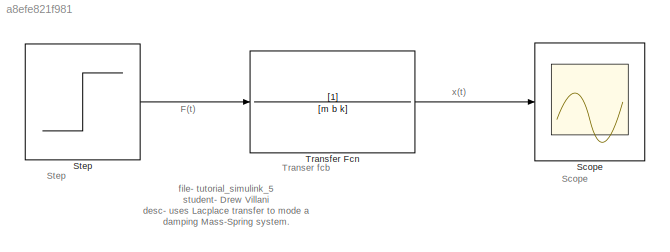
MODEL slx_a8efe821f981
KIND model
CONFIG AbsTol = auto
CONFIG EnableMultiTasking = off
CONFIG FixedStep = auto
CONFIG MaxStep = auto
CONFIG MinStep = auto
CONFIG RelTol = 1e-3
CONFIG SampleTimeConstraint = Unconstrained
CONFIG SolverName = VariableStepAuto
CONFIG StartTime = 0.0
CONFIG StopTime = 15
BLOCK [Scope] Scope
  Floating = off
  NumInputPorts = 1
  ScopeSpecificationString = Simulink.scopes.TimeScopeBlockCfg('CurrentConfiguration', extmgr.ConfigurationSet(extmgr.Configuration('Core','General UI',true),extmgr.Configuration('Core','Source UI',true),extmgr.Configuration('Sources','WiredSimulink',true),extmgr.Configuration('Visuals','Time Domain',true,'SerializedDisplays',{struct('MinYLimReal','-0.41326','MaxYLimReal','3.7193','YLabelReal','','MinYLimMag','0.00000','MaxYL...<+1540ch>
BLOCK [Step] Step
  After = 10
  SampleTime = 0
BLOCK [TransferFcn] Transfer Fcn
  Denominator = [m b k]
ANNOTATION (root): file- tutorial_simulink_5 student- Drew Villani desc- uses Lacplace transfer to mode a damping Mass-Spring system.
ANNOTATION (root): F(t)
ANNOTATION (root): Scope
ANNOTATION (root): Step
ANNOTATION (root): Transer fcb
ANNOTATION (root): x(t)
LINE Step:1 -> Transfer Fcn:1
LINE Transfer Fcn:1 -> Scope:1
